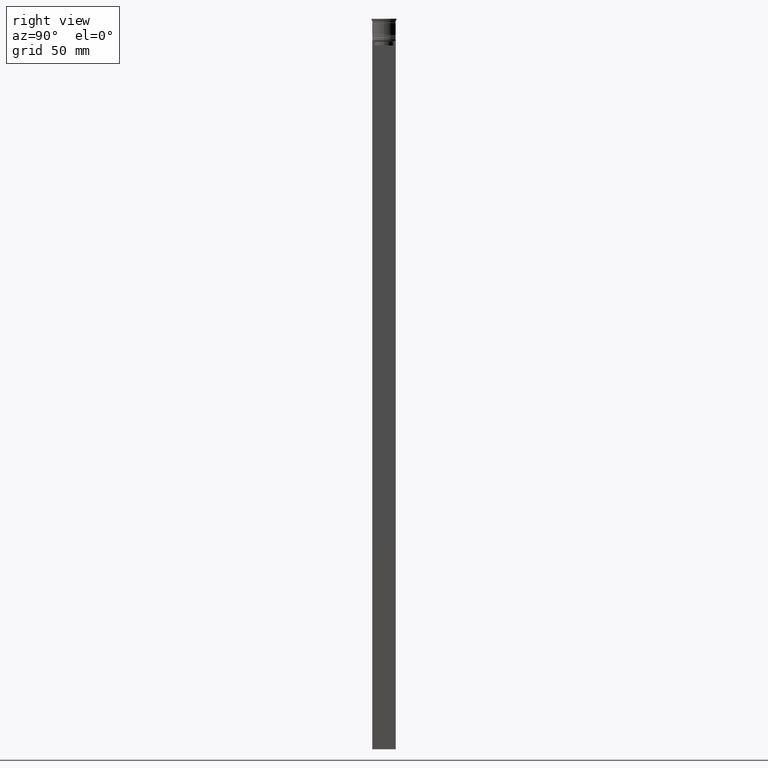
[diagram: clean part render]
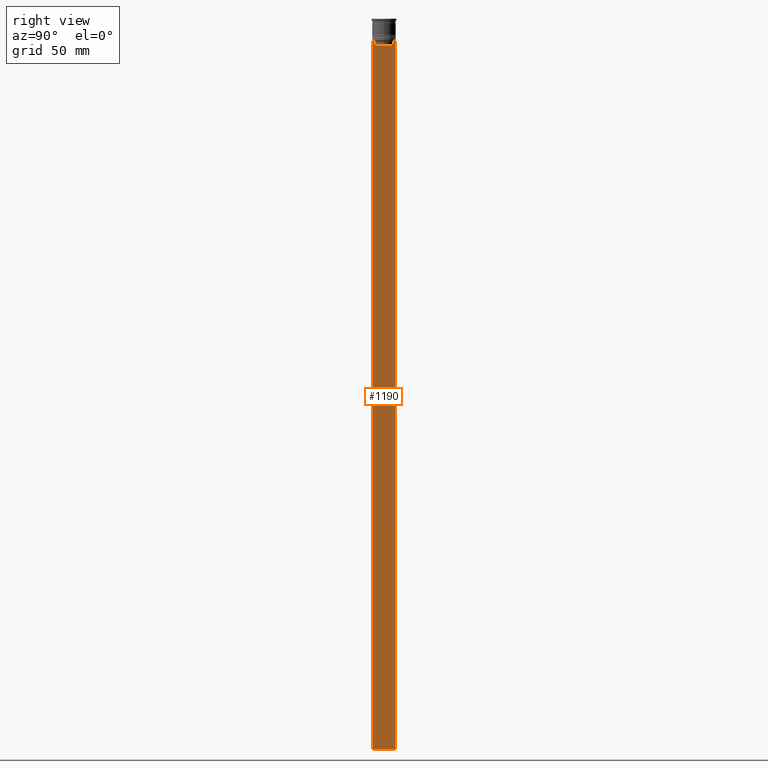
[diagram: same view with one face highlighted and labeled with its STEP entity id]
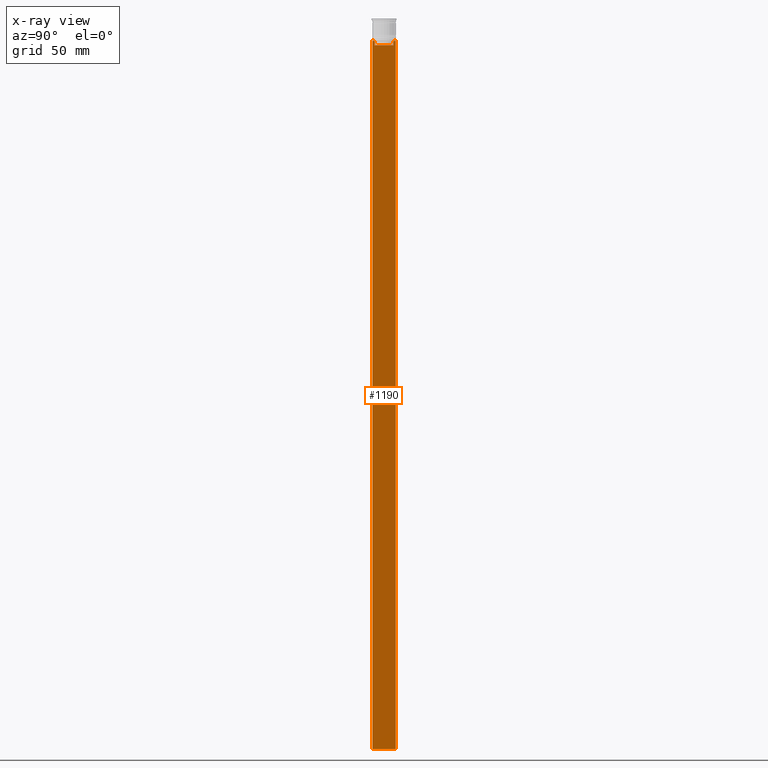
[diagram: x-ray of the same camera — body ghosted, the highlighted face saturated]
A machine part, right view. The second image highlights one B-rep face of the part: STEP entity #1190.
The next image is the same camera in x-ray: the body ghosted, the highlighted face saturated — about 0% of this face is hidden behind the body in this view.
In plain terms, the highlighted planar face has unit normal (-1, 0, 0).
Its self-contained STEP definition (entity closure, byte-faithful):
#2 = EDGE_CURVE ( 'NONE', #615, #348, #395, .T. ) ;
#42 = DIRECTION ( 'NONE',  ( -1.000000000000000000, 0.000000000000000000, 0.000000000000000000 ) ) ;
#43 = ORIENTED_EDGE ( 'NONE', *, *, #2305, .T. ) ;
#58 = DIRECTION ( 'NONE',  ( 0.000000000000000000, 1.000000000000000000, 0.000000000000000000 ) ) ;
#71 = ORIENTED_EDGE ( 'NONE', *, *, #190, .F. ) ;
#103 = LINE ( 'NONE', #276, #381 ) ;
#116 = DIRECTION ( 'NONE',  ( 0.000000000000000000, 0.000000000000000000, -1.000000000000000000 ) ) ;
#141 = VECTOR ( 'NONE', #961, 1000.000000000000000 ) ;
#165 = VECTOR ( 'NONE', #58, 1000.000000000000000 ) ;
#169 = ORIENTED_EDGE ( 'NONE', *, *, #2433, .T. ) ;
#189 = VERTEX_POINT ( 'NONE', #2084 ) ;
#190 = EDGE_CURVE ( 'NONE', #189, #1340, #1444, .T. ) ;
#194 = VERTEX_POINT ( 'NONE', #2420 ) ;
#223 = CARTESIAN_POINT ( 'NONE',  ( 0.5000000000000000000, 5.878775382679625849, -17.00000000000000000 ) ) ;
#233 = PLANE ( 'NONE',  #1128 ) ;
#245 = LINE ( 'NONE', #1797, #165 ) ;
#256 = CARTESIAN_POINT ( 'NONE',  ( 0.5000000000000000000, -6.213239311785844876, -14.16668851110870087 ) ) ;
#276 = CARTESIAN_POINT ( 'NONE',  ( 0.5000000000000000000, -7.499999999999999112, 1.033296378372908997 ) ) ;
#300 = LINE ( 'NONE', #1066, #1029 ) ;
#348 = VERTEX_POINT ( 'NONE', #1345 ) ;
#365 = VERTEX_POINT ( 'NONE', #2361 ) ;
#381 = VECTOR ( 'NONE', #648, 1000.000000000000000 ) ;
#395 = LINE ( 'NONE', #1159, #1199 ) ;
#405 = CARTESIAN_POINT ( 'NONE',  ( 0.5000000000000000000, 6.380438856379706536, -14.00000000000000178 ) ) ;
#417 = ORIENTED_EDGE ( 'NONE', *, *, #703, .T. ) ;
#418 = FACE_OUTER_BOUND ( 'NONE', #1174, .T. ) ;
#457 = ORIENTED_EDGE ( 'NONE', *, *, #1871, .T. ) ;
#583 = DIRECTION ( 'NONE',  ( 0.000000000000000000, -1.000000000000000000, 0.000000000000000000 ) ) ;
#615 = VERTEX_POINT ( 'NONE', #1102 ) ;
#648 = DIRECTION ( 'NONE',  ( 0.000000000000000000, 0.000000000000000000, -1.000000000000000000 ) ) ;
#703 = EDGE_CURVE ( 'NONE', #189, #710, #1566, .T. ) ;
#708 = ORIENTED_EDGE ( 'NONE', *, *, #1716, .T. ) ;
#709 = DIRECTION ( 'NONE',  ( 0.000000000000000000, 0.000000000000000000, -1.000000000000000000 ) ) ;
#710 = VERTEX_POINT ( 'NONE', #1600 ) ;
#724 = DIRECTION ( 'NONE',  ( 0.000000000000000000, -1.000000000000000000, 0.000000000000000000 ) ) ;
#767 = ORIENTED_EDGE ( 'NONE', *, *, #912, .T. ) ;
#779 = EDGE_CURVE ( 'NONE', #1830, #1340, #245, .T. ) ;
#822 = EDGE_CURVE ( 'NONE', #710, #1153, #1063, .T. ) ;
#872 = B_SPLINE_CURVE_WITH_KNOTS ( 'NONE', 3,
 ( #1193, #1572, #1597, #1563 ),
 .UNSPECIFIED., .F., .F.,
 ( 4, 4 ),
 ( 0.01087727669788152163, 0.01158556069794289788 ),
 .UNSPECIFIED. ) ;
#899 = CARTESIAN_POINT ( 'NONE',  ( 0.5000000000000000000, -7.499999999999999112, -464.0000000000000000 ) ) ;
#912 = EDGE_CURVE ( 'NONE', #348, #194, #1125, .T. ) ;
#961 = DIRECTION ( 'NONE',  ( 0.000000000000000000, -1.000000000000000000, 0.000000000000000000 ) ) ;
#977 = CARTESIAN_POINT ( 'NONE',  ( 0.5000000000000000000, -7.499999999999999112, -14.00000000000000178 ) ) ;
#996 = CARTESIAN_POINT ( 'NONE',  ( 0.5000000000000000000, -7.499999999999999112, 1.033296378372908997 ) ) ;
#997 = EDGE_CURVE ( 'NONE', #1280, #1171, #1681, .T. ) ;
#1029 = VECTOR ( 'NONE', #1279, 1000.000000000000000 ) ;
#1063 = LINE ( 'NONE', #1629, #1126 ) ;
#1066 = CARTESIAN_POINT ( 'NONE',  ( 0.5000000000000000000, -7.499999999999999112, -14.00000000000000178 ) ) ;
#1102 = CARTESIAN_POINT ( 'NONE',  ( 0.5000000000000000000, -5.878775382679625849, -17.00000000000000000 ) ) ;
#1125 = B_SPLINE_CURVE_WITH_KNOTS ( 'NONE', 3,
 ( #1210, #1993, #256, #1809 ),
 .UNSPECIFIED., .F., .F.,
 ( 4, 4 ),
 ( 0.02765270321082434479, 0.02836198271238431559 ),
 .UNSPECIFIED. ) ;
#1126 = VECTOR ( 'NONE', #2387, 1000.000000000000000 ) ;
#1128 = AXIS2_PLACEMENT_3D ( 'NONE', #996, #42, #2296 ) ;
#1153 = VERTEX_POINT ( 'NONE', #405 ) ;
#1159 = CARTESIAN_POINT ( 'NONE',  ( 0.5000000000000000000, -5.878775382679625849, 0.000000000000000000 ) ) ;
#1171 = VERTEX_POINT ( 'NONE', #223 ) ;
#1174 = EDGE_LOOP ( 'NONE', ( #1185, #169, #1649, #457, #2201, #767, #43, #1583, #708, #2304, #71, #417 ) ) ;
#1185 = ORIENTED_EDGE ( 'NONE', *, *, #822, .T. ) ;
#1190 = ADVANCED_FACE ( 'NONE', ( #418 ), #233, .F. ) ;
#1193 = CARTESIAN_POINT ( 'NONE',  ( 0.5000000000000000000, 6.380438856379706536, -14.00000000000000178 ) ) ;
#1199 = VECTOR ( 'NONE', #1938, 1000.000000000000000 ) ;
#1210 = CARTESIAN_POINT ( 'NONE',  ( 0.5000000000000000000, -5.878775382679625849, -14.50000000000000000 ) ) ;
#1257 = CARTESIAN_POINT ( 'NONE',  ( 0.5000000000000000000, 7.500000000000002665, 1.033296378372908997 ) ) ;
#1279 = DIRECTION ( 'NONE',  ( 0.000000000000000000, -1.000000000000000000, 0.000000000000000000 ) ) ;
#1280 = VERTEX_POINT ( 'NONE', #1446 ) ;
#1290 = VECTOR ( 'NONE', #709, 1000.000000000000000 ) ;
#1340 = VERTEX_POINT ( 'NONE', #1459 ) ;
#1345 = CARTESIAN_POINT ( 'NONE',  ( 0.5000000000000000000, -5.878775382679625849, -14.50000000000000000 ) ) ;
#1355 = CARTESIAN_POINT ( 'NONE',  ( 0.5000000000000000000, -7.499999999999999112, -14.00000000000000178 ) ) ;
#1368 = VECTOR ( 'NONE', #116, 1000.000000000000000 ) ;
#1444 = LINE ( 'NONE', #1257, #1368 ) ;
#1446 = CARTESIAN_POINT ( 'NONE',  ( 0.5000000000000000000, 5.878775382679625849, -14.50000000000000000 ) ) ;
#1459 = CARTESIAN_POINT ( 'NONE',  ( 0.5000000000000000000, 7.500000000000002665, -464.0000000000000000 ) ) ;
#1563 = CARTESIAN_POINT ( 'NONE',  ( 0.5000000000000000000, 5.878775382679625849, -14.50000000000000000 ) ) ;
#1566 = LINE ( 'NONE', #1355, #2462 ) ;
#1568 = VERTEX_POINT ( 'NONE', #1766 ) ;
#1572 = CARTESIAN_POINT ( 'NONE',  ( 0.5000000000000000000, 6.213239387491007015, -14.16668843563492430 ) ) ;
#1583 = ORIENTED_EDGE ( 'NONE', *, *, #1978, .T. ) ;
#1597 = CARTESIAN_POINT ( 'NONE',  ( 0.5000000000000000000, 6.046020074006152711, -14.33335695351623151 ) ) ;
#1600 = CARTESIAN_POINT ( 'NONE',  ( 0.5000000000000000000, 7.383088784512886527, -14.00000000000000178 ) ) ;
#1629 = CARTESIAN_POINT ( 'NONE',  ( 0.5000000000000000000, -7.499999999999999112, -14.00000000000000178 ) ) ;
#1649 = ORIENTED_EDGE ( 'NONE', *, *, #997, .T. ) ;
#1681 = LINE ( 'NONE', #1867, #1290 ) ;
#1697 = LINE ( 'NONE', #2417, #2432 ) ;
#1716 = EDGE_CURVE ( 'NONE', #1568, #1830, #103, .T. ) ;
#1766 = CARTESIAN_POINT ( 'NONE',  ( 0.5000000000000000000, -7.499999999999999112, -14.00000000000000178 ) ) ;
#1797 = CARTESIAN_POINT ( 'NONE',  ( 0.5000000000000000000, -7.499999999999999112, -464.0000000000000000 ) ) ;
#1809 = CARTESIAN_POINT ( 'NONE',  ( 0.5000000000000000000, -6.380438856379706536, -14.00000000000000178 ) ) ;
#1830 = VERTEX_POINT ( 'NONE', #899 ) ;
#1867 = CARTESIAN_POINT ( 'NONE',  ( 0.5000000000000000000, 5.878775382679625849, 0.000000000000000000 ) ) ;
#1871 = EDGE_CURVE ( 'NONE', #1171, #615, #1697, .T. ) ;
#1934 = LINE ( 'NONE', #977, #141 ) ;
#1938 = DIRECTION ( 'NONE',  ( -0.000000000000000000, -0.000000000000000000, 1.000000000000000000 ) ) ;
#1978 = EDGE_CURVE ( 'NONE', #365, #1568, #1934, .T. ) ;
#1993 = CARTESIAN_POINT ( 'NONE',  ( 0.5000000000000000000, -6.046019991840948293, -14.33335703538585726 ) ) ;
#2084 = CARTESIAN_POINT ( 'NONE',  ( 0.5000000000000000000, 7.500000000000002665, -14.00000000000000178 ) ) ;
#2201 = ORIENTED_EDGE ( 'NONE', *, *, #2, .T. ) ;
#2296 = DIRECTION ( 'NONE',  ( 0.000000000000000000, 0.000000000000000000, 1.000000000000000000 ) ) ;
#2304 = ORIENTED_EDGE ( 'NONE', *, *, #779, .T. ) ;
#2305 = EDGE_CURVE ( 'NONE', #194, #365, #300, .T. ) ;
#2361 = CARTESIAN_POINT ( 'NONE',  ( 0.5000000000000000000, -7.383088784512886527, -14.00000000000000178 ) ) ;
#2387 = DIRECTION ( 'NONE',  ( 0.000000000000000000, -1.000000000000000000, 0.000000000000000000 ) ) ;
#2417 = CARTESIAN_POINT ( 'NONE',  ( 0.5000000000000000000, 5.899999999999998579, -17.00000000000000000 ) ) ;
#2420 = CARTESIAN_POINT ( 'NONE',  ( 0.5000000000000000000, -6.380438856379706536, -14.00000000000000178 ) ) ;
#2432 = VECTOR ( 'NONE', #724, 1000.000000000000000 ) ;
#2433 = EDGE_CURVE ( 'NONE', #1153, #1280, #872, .T. ) ;
#2462 = VECTOR ( 'NONE', #583, 1000.000000000000000 ) ;